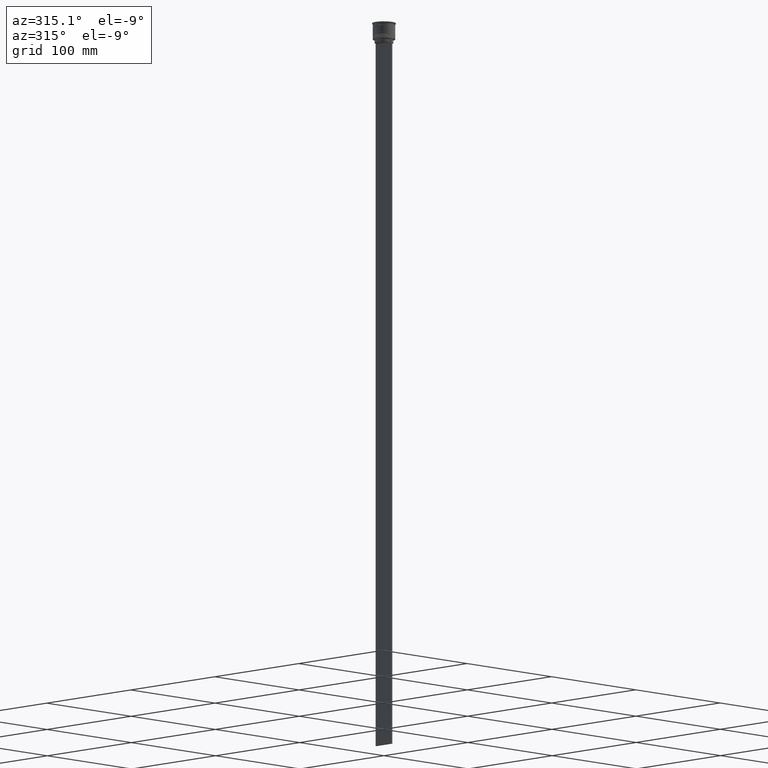
[diagram: clean part render]
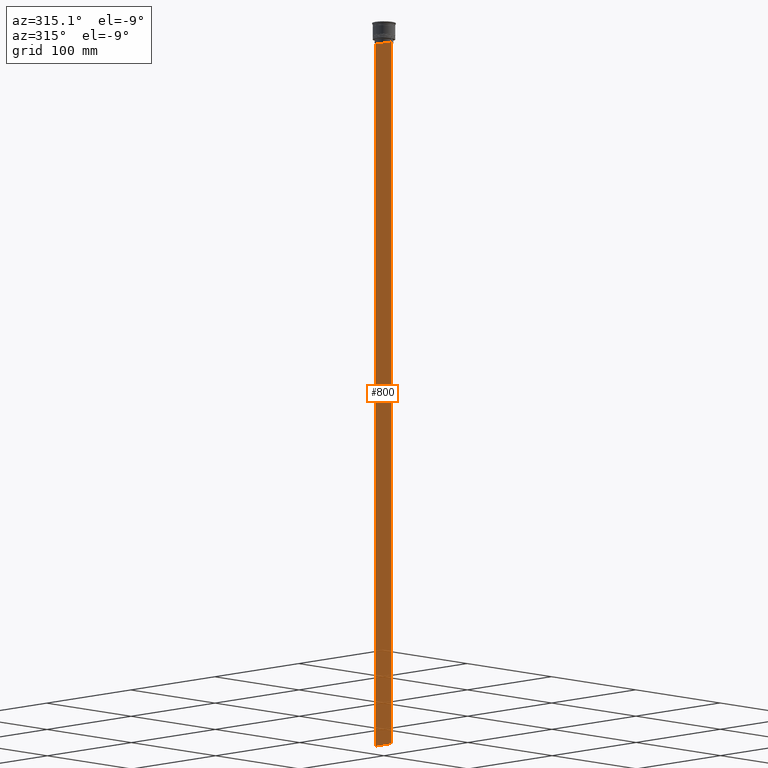
[diagram: same view with one face highlighted and labeled with its STEP entity id]
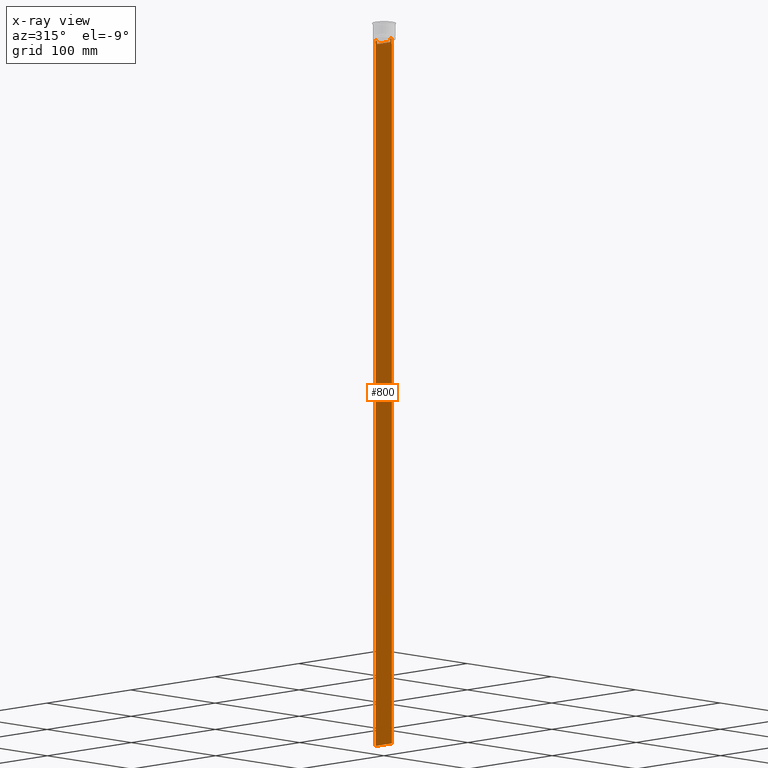
[diagram: x-ray of the same camera — body ghosted, the highlighted face saturated]
A machine part, auxiliary view. The second image highlights one B-rep face of the part: STEP entity #800.
The next image is the same camera in x-ray: the body ghosted, the highlighted face saturated — about 0% of this face is hidden behind the body in this view.
In plain terms, the highlighted planar face has unit normal (-1, 0, 0).
Its self-contained STEP definition (entity closure, byte-faithful):
#12 = ORIENTED_EDGE ( 'NONE', *, *, #1752, .F. ) ;
#53 = CARTESIAN_POINT ( 'NONE',  ( -0.5000000000000000000, -9.500000000000001776, 5.026297590440445440 ) ) ;
#68 = EDGE_CURVE ( 'NONE', #223, #1106, #2336, .T. ) ;
#78 = VERTEX_POINT ( 'NONE', #388 ) ;
#96 = ORIENTED_EDGE ( 'NONE', *, *, #1802, .F. ) ;
#106 = ORIENTED_EDGE ( 'NONE', *, *, #2533, .F. ) ;
#221 = B_SPLINE_CURVE_WITH_KNOTS ( 'NONE', 3,
 ( #1595, #956, #1778, #2597 ),
 .UNSPECIFIED., .F., .F.,
 ( 4, 4 ),
 ( 0.01426761478740281447, 0.01497538974438914448 ),
 .UNSPECIFIED. ) ;
#223 = VERTEX_POINT ( 'NONE', #386 ) ;
#236 = CARTESIAN_POINT ( 'NONE',  ( -0.5000000000000000000, 9.499999999999998224, -614.0000000000000000 ) ) ;
#250 = CARTESIAN_POINT ( 'NONE',  ( -0.5000000000000000000, 9.499999999999998224, 5.026297590440445440 ) ) ;
#255 = DIRECTION ( 'NONE',  ( 0.000000000000000000, 0.000000000000000000, -1.000000000000000000 ) ) ;
#308 = CARTESIAN_POINT ( 'NONE',  ( -0.5000000000000000000, 7.884161337770803080, 0.000000000000000000 ) ) ;
#311 = CARTESIAN_POINT ( 'NONE',  ( -0.5000000000000000000, 9.386692708297204035, -14.00000000000000178 ) ) ;
#317 = PLANE ( 'NONE',  #419 ) ;
#321 = ORIENTED_EDGE ( 'NONE', *, *, #717, .F. ) ;
#367 = ORIENTED_EDGE ( 'NONE', *, *, #2446, .F. ) ;
#379 = VECTOR ( 'NONE', #1650, 1000.000000000000000 ) ;
#386 = CARTESIAN_POINT ( 'NONE',  ( -0.5000000000000000000, 7.884161337770803080, -14.50000000000000000 ) ) ;
#388 = CARTESIAN_POINT ( 'NONE',  ( -0.5000000000000000000, -9.500000000000001776, -14.00000000000000178 ) ) ;
#419 = AXIS2_PLACEMENT_3D ( 'NONE', #1946, #2157, #1905 ) ;
#501 = VECTOR ( 'NONE', #1745, 1000.000000000000000 ) ;
#503 = CARTESIAN_POINT ( 'NONE',  ( -0.5000000000000000000, -8.385105843100605583, -14.00000000000000178 ) ) ;
#542 = ORIENTED_EDGE ( 'NONE', *, *, #1039, .T. ) ;
#547 = VERTEX_POINT ( 'NONE', #2183 ) ;
#602 = EDGE_LOOP ( 'NONE', ( #96, #106, #1987, #542, #2567, #1433, #2161, #2230, #321, #367, #12, #1257 ) ) ;
#614 = VERTEX_POINT ( 'NONE', #1282 ) ;
#634 = VERTEX_POINT ( 'NONE', #236 ) ;
#654 = EDGE_CURVE ( 'NONE', #78, #1146, #856, .T. ) ;
#665 = VECTOR ( 'NONE', #1796, 1000.000000000000000 ) ;
#714 = LINE ( 'NONE', #2144, #501 ) ;
#717 = EDGE_CURVE ( 'NONE', #2009, #1437, #2235, .T. ) ;
#719 = CARTESIAN_POINT ( 'NONE',  ( -0.5000000000000000000, -8.218133703942523738, -14.16667607853445787 ) ) ;
#800 = ADVANCED_FACE ( 'NONE', ( #2146 ), #317, .T. ) ;
#837 = LINE ( 'NONE', #250, #379 ) ;
#856 = LINE ( 'NONE', #53, #1316 ) ;
#956 = CARTESIAN_POINT ( 'NONE',  ( -0.5000000000000000000, 8.218133718559618828, -14.16667606394327983 ) ) ;
#989 = EDGE_CURVE ( 'NONE', #1146, #634, #2294, .T. ) ;
#1039 = EDGE_CURVE ( 'NONE', #2487, #634, #837, .T. ) ;
#1070 = DIRECTION ( 'NONE',  ( 0.000000000000000000, 1.000000000000000000, 0.000000000000000000 ) ) ;
#1106 = VERTEX_POINT ( 'NONE', #1705 ) ;
#1114 = DIRECTION ( 'NONE',  ( 0.000000000000000000, 0.000000000000000000, -1.000000000000000000 ) ) ;
#1136 = CARTESIAN_POINT ( 'NONE',  ( -0.5000000000000000000, -7.884161337770803080, -14.50000000000000000 ) ) ;
#1146 = VERTEX_POINT ( 'NONE', #2530 ) ;
#1158 = LINE ( 'NONE', #2382, #2476 ) ;
#1181 = VERTEX_POINT ( 'NONE', #2358 ) ;
#1198 = EDGE_CURVE ( 'NONE', #1437, #1181, #1330, .T. ) ;
#1205 = CARTESIAN_POINT ( 'NONE',  ( -0.5000000000000000000, -9.500000000000001776, -14.00000000000000178 ) ) ;
#1257 = ORIENTED_EDGE ( 'NONE', *, *, #68, .F. ) ;
#1282 = CARTESIAN_POINT ( 'NONE',  ( -0.5000000000000000000, 8.385105843100605583, -14.00000000000000178 ) ) ;
#1301 = EDGE_CURVE ( 'NONE', #1181, #78, #1158, .T. ) ;
#1316 = VECTOR ( 'NONE', #255, 1000.000000000000000 ) ;
#1330 = LINE ( 'NONE', #2117, #1495 ) ;
#1397 = DIRECTION ( 'NONE',  ( 0.000000000000000000, -1.000000000000000000, 0.000000000000000000 ) ) ;
#1433 = ORIENTED_EDGE ( 'NONE', *, *, #654, .F. ) ;
#1437 = VERTEX_POINT ( 'NONE', #2490 ) ;
#1495 = VECTOR ( 'NONE', #2143, 1000.000000000000000 ) ;
#1578 = VERTEX_POINT ( 'NONE', #311 ) ;
#1595 = CARTESIAN_POINT ( 'NONE',  ( -0.5000000000000000000, 8.385105843100605583, -14.00000000000000178 ) ) ;
#1650 = DIRECTION ( 'NONE',  ( 0.000000000000000000, 0.000000000000000000, -1.000000000000000000 ) ) ;
#1705 = CARTESIAN_POINT ( 'NONE',  ( -0.5000000000000000000, 7.884161337770803080, -17.00000000000000000 ) ) ;
#1733 = CARTESIAN_POINT ( 'NONE',  ( -0.5000000000000000000, -8.051152795888546265, -14.33334334204685057 ) ) ;
#1745 = DIRECTION ( 'NONE',  ( -0.000000000000000000, -0.000000000000000000, 1.000000000000000000 ) ) ;
#1752 = EDGE_CURVE ( 'NONE', #1106, #547, #2190, .T. ) ;
#1778 = CARTESIAN_POINT ( 'NONE',  ( -0.5000000000000000000, 8.051152811434374001, -14.33334332653219079 ) ) ;
#1789 = VECTOR ( 'NONE', #1070, 1000.000000000000000 ) ;
#1796 = DIRECTION ( 'NONE',  ( 0.000000000000000000, -1.000000000000000000, 0.000000000000000000 ) ) ;
#1802 = EDGE_CURVE ( 'NONE', #614, #223, #221, .T. ) ;
#1829 = DIRECTION ( 'NONE',  ( 0.000000000000000000, -1.000000000000000000, 0.000000000000000000 ) ) ;
#1905 = DIRECTION ( 'NONE',  ( 0.000000000000000000, 0.000000000000000000, 1.000000000000000000 ) ) ;
#1943 = CARTESIAN_POINT ( 'NONE',  ( -0.5000000000000000000, 9.499999999999994671, -14.00000000000000178 ) ) ;
#1946 = CARTESIAN_POINT ( 'NONE',  ( -0.5000000000000000000, -9.500000000000001776, 5.026297590440445440 ) ) ;
#1968 = CARTESIAN_POINT ( 'NONE',  ( -0.5000000000000000000, 7.899999999999994138, -17.00000000000000000 ) ) ;
#1987 = ORIENTED_EDGE ( 'NONE', *, *, #2241, .F. ) ;
#2008 = DIRECTION ( 'NONE',  ( 0.000000000000000000, -1.000000000000000000, 0.000000000000000000 ) ) ;
#2009 = VERTEX_POINT ( 'NONE', #1136 ) ;
#2023 = CARTESIAN_POINT ( 'NONE',  ( -0.5000000000000000000, -9.500000000000001776, -14.00000000000000178 ) ) ;
#2096 = CARTESIAN_POINT ( 'NONE',  ( -0.5000000000000000000, -9.500000000000001776, -614.0000000000000000 ) ) ;
#2117 = CARTESIAN_POINT ( 'NONE',  ( -0.5000000000000000000, -9.500000000000001776, -14.00000000000000178 ) ) ;
#2143 = DIRECTION ( 'NONE',  ( 0.000000000000000000, -1.000000000000000000, 0.000000000000000000 ) ) ;
#2144 = CARTESIAN_POINT ( 'NONE',  ( -0.5000000000000000000, -7.884161337770803080, 0.000000000000000000 ) ) ;
#2146 = FACE_OUTER_BOUND ( 'NONE', #602, .T. ) ;
#2157 = DIRECTION ( 'NONE',  ( -1.000000000000000000, 0.000000000000000000, 0.000000000000000000 ) ) ;
#2161 = ORIENTED_EDGE ( 'NONE', *, *, #1301, .F. ) ;
#2183 = CARTESIAN_POINT ( 'NONE',  ( -0.5000000000000000000, -7.884161337770803080, -17.00000000000000000 ) ) ;
#2190 = LINE ( 'NONE', #1968, #2616 ) ;
#2229 = LINE ( 'NONE', #1205, #2503 ) ;
#2230 = ORIENTED_EDGE ( 'NONE', *, *, #1198, .F. ) ;
#2235 = B_SPLINE_CURVE_WITH_KNOTS ( 'NONE', 3,
 ( #2548, #1733, #719, #503 ),
 .UNSPECIFIED., .F., .F.,
 ( 4, 4 ),
 ( 0.03673372442973153046, 0.03744389749832059688 ),
 .UNSPECIFIED. ) ;
#2241 = EDGE_CURVE ( 'NONE', #2487, #1578, #2229, .T. ) ;
#2294 = LINE ( 'NONE', #2096, #1789 ) ;
#2336 = LINE ( 'NONE', #308, #2380 ) ;
#2358 = CARTESIAN_POINT ( 'NONE',  ( -0.5000000000000000000, -9.386692708297204035, -14.00000000000000178 ) ) ;
#2380 = VECTOR ( 'NONE', #1114, 1000.000000000000000 ) ;
#2382 = CARTESIAN_POINT ( 'NONE',  ( -0.5000000000000000000, -9.500000000000001776, -14.00000000000000178 ) ) ;
#2446 = EDGE_CURVE ( 'NONE', #547, #2009, #714, .T. ) ;
#2476 = VECTOR ( 'NONE', #1397, 1000.000000000000000 ) ;
#2487 = VERTEX_POINT ( 'NONE', #1943 ) ;
#2490 = CARTESIAN_POINT ( 'NONE',  ( -0.5000000000000000000, -8.385105843100605583, -14.00000000000000178 ) ) ;
#2503 = VECTOR ( 'NONE', #1829, 1000.000000000000000 ) ;
#2530 = CARTESIAN_POINT ( 'NONE',  ( -0.5000000000000000000, -9.500000000000001776, -614.0000000000000000 ) ) ;
#2533 = EDGE_CURVE ( 'NONE', #1578, #614, #2649, .T. ) ;
#2548 = CARTESIAN_POINT ( 'NONE',  ( -0.5000000000000000000, -7.884161337770803080, -14.50000000000000000 ) ) ;
#2567 = ORIENTED_EDGE ( 'NONE', *, *, #989, .F. ) ;
#2597 = CARTESIAN_POINT ( 'NONE',  ( -0.5000000000000000000, 7.884161337770803080, -14.50000000000000000 ) ) ;
#2616 = VECTOR ( 'NONE', #2008, 1000.000000000000000 ) ;
#2649 = LINE ( 'NONE', #2023, #665 ) ;